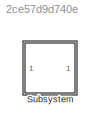
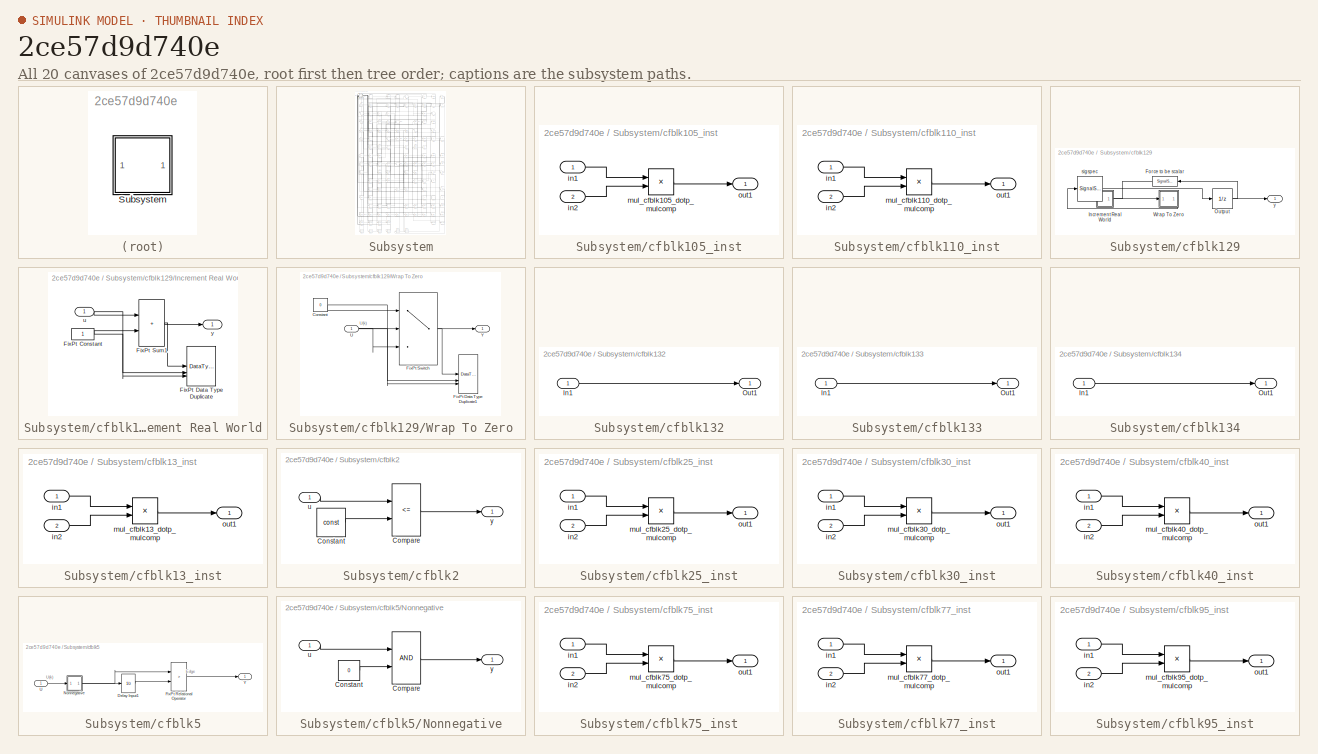
[diagram: thumbnail index - all 20 canvases of the model, root first then tree order]
MODEL slx_2ce57d9d740e
KIND model
CONFIG AbsTol = auto
CONFIG EnableMultiTasking = off
CONFIG FixedStep = auto
CONFIG MaxStep = auto
CONFIG MinStep = auto
CONFIG RelTol = 1e-3
CONFIG SampleTimeConstraint = Unconstrained
CONFIG SolverName = VariableStepAuto
CONFIG StartTime = 0.0
CONFIG StopTime = 10.0
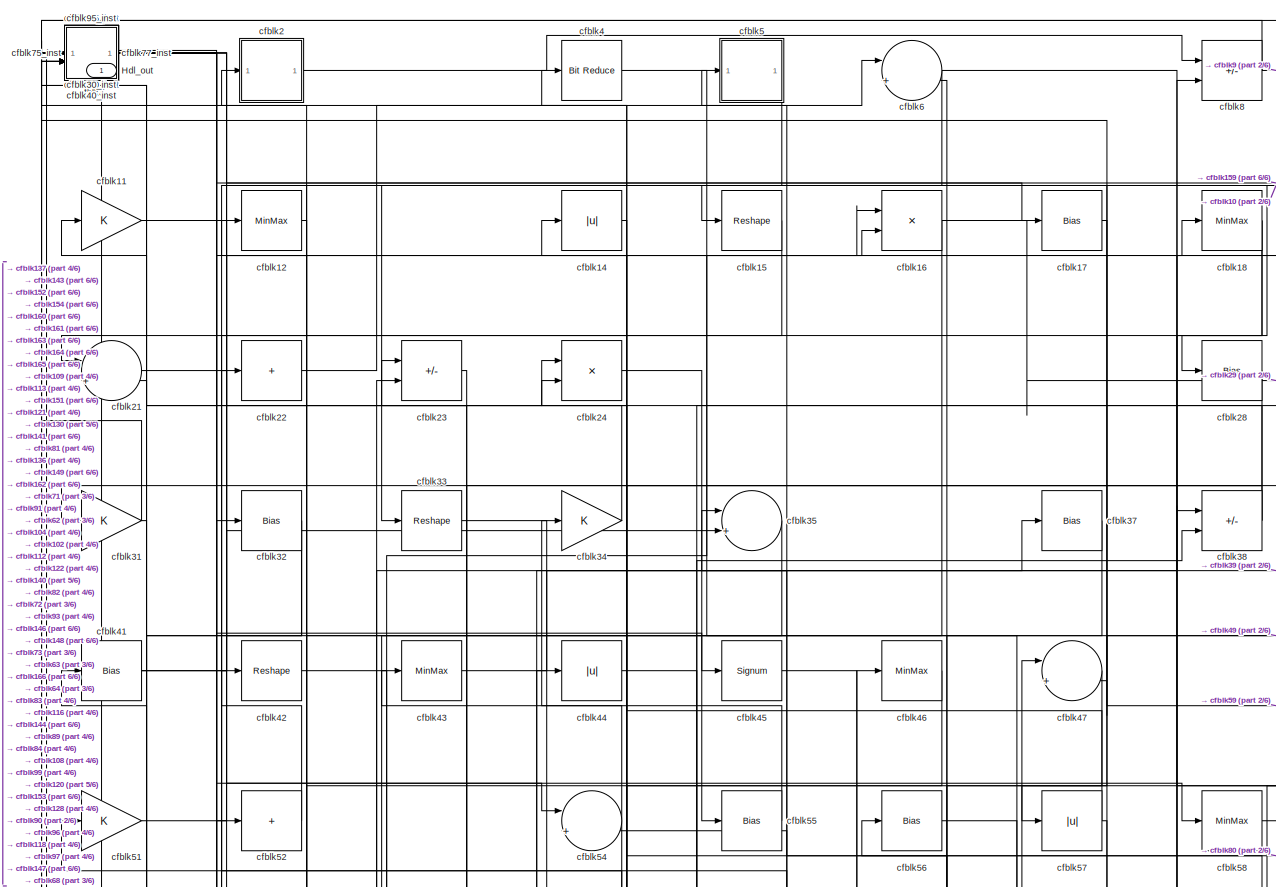
[diagram: Subsystem - part 1/6, full width, top band]
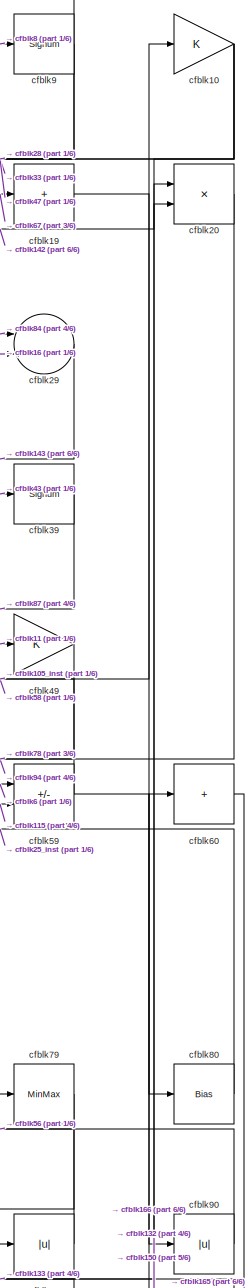
[diagram: Subsystem - part 2/6, top right region]
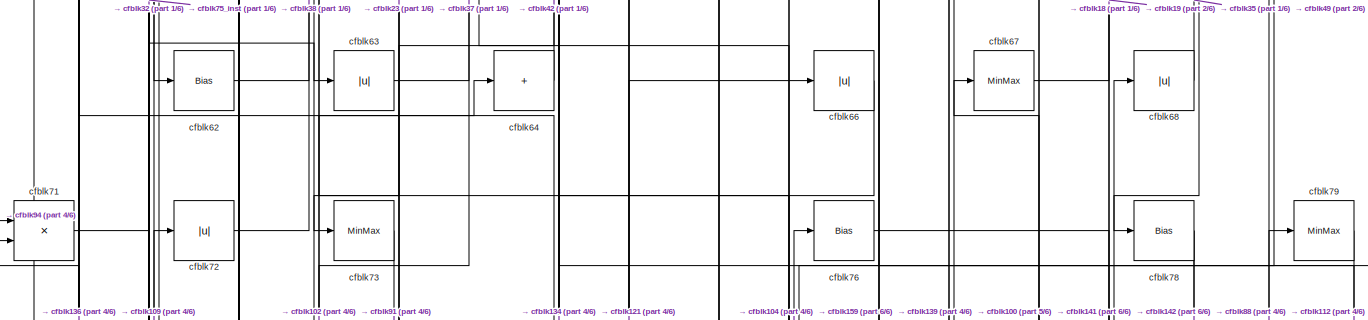
[diagram: Subsystem - part 3/6, full width, middle band]
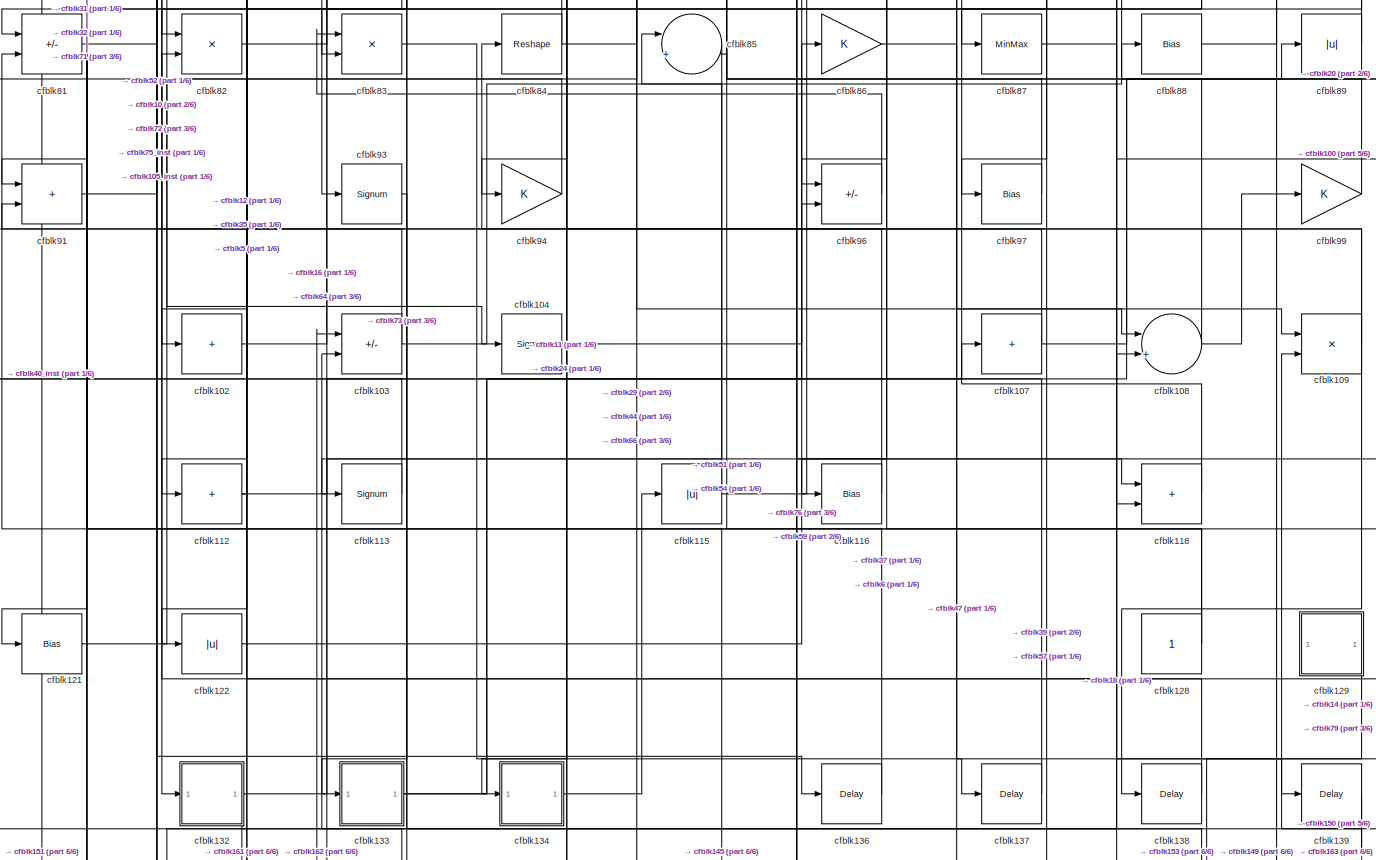
[diagram: Subsystem - part 4/6, full width, middle band]
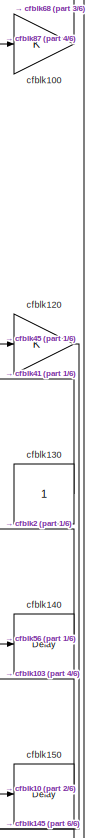
[diagram: Subsystem - part 5/6, bottom right region]
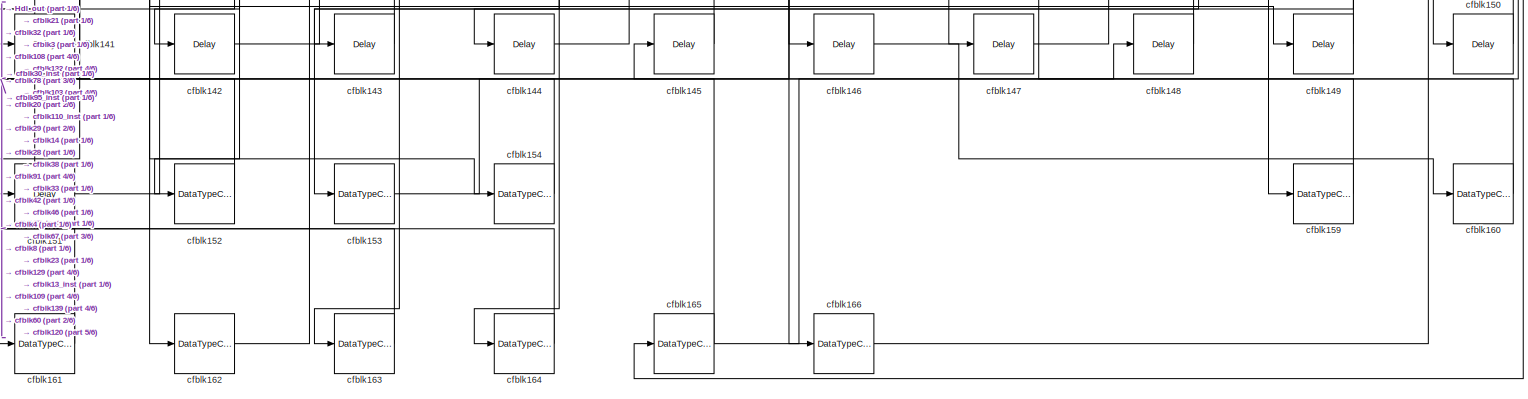
[diagram: Subsystem - part 6/6, full width, bottom band]
BLOCK [SubSystem] Subsystem
BLOCK [Outport] Subsystem/Hdl_out
  OutDataTypeStr = uint8
  SampleTime = 1
BLOCK [Gain] Subsystem/cfblk10
  OutDataTypeStr = uint8
BLOCK [Gain] Subsystem/cfblk100
  OutDataTypeStr = uint8
BLOCK [Sum] Subsystem/cfblk102
  IconShape = rectangular
  Inputs = +
  OutDataTypeStr = uint8
BLOCK [Sum] Subsystem/cfblk103
  IconShape = rectangular
  Inputs = +-
  OutDataTypeStr = uint8
BLOCK [Signum] Subsystem/cfblk104
BLOCK [SubSystem] Subsystem/cfblk105_inst
BLOCK [Inport] Subsystem/cfblk105_inst/in1
  OutDataTypeStr = uint8
  SampleTime = 1
BLOCK [Inport] Subsystem/cfblk105_inst/in2
  OutDataTypeStr = uint8
  Port = 2
  SampleTime = 1
BLOCK [Product] Subsystem/cfblk105_inst/mul_cfblk105_dotp_mulcomp
  Inputs = **
  OutDataTypeStr = uint8
  SampleTime = 1
BLOCK [Outport] Subsystem/cfblk105_inst/out1
  OutDataTypeStr = uint8
  SampleTime = 1
BLOCK [Sum] Subsystem/cfblk107
  IconShape = rectangular
  Inputs = +
  OutDataTypeStr = uint8
BLOCK [Sum] Subsystem/cfblk108
  Inputs = |++
  OutDataTypeStr = uint8
BLOCK [Product] Subsystem/cfblk109
  Inputs = */
  OutDataTypeStr = uint8
  RndMeth = Zero
  SaturateOnIntegerOverflow = on
BLOCK [Gain] Subsystem/cfblk11
  OutDataTypeStr = uint8
BLOCK [SubSystem] Subsystem/cfblk110_inst
BLOCK [Inport] Subsystem/cfblk110_inst/in1
  OutDataTypeStr = uint8
  SampleTime = 1
BLOCK [Inport] Subsystem/cfblk110_inst/in2
  OutDataTypeStr = uint8
  Port = 2
  SampleTime = 1
BLOCK [Product] Subsystem/cfblk110_inst/mul_cfblk110_dotp_mulcomp
  Inputs = **
  OutDataTypeStr = uint8
  SampleTime = 1
BLOCK [Outport] Subsystem/cfblk110_inst/out1
  OutDataTypeStr = uint8
  SampleTime = 1
BLOCK [Sum] Subsystem/cfblk112
  IconShape = rectangular
  Inputs = +
  OutDataTypeStr = uint8
BLOCK [Signum] Subsystem/cfblk113
BLOCK [Abs] Subsystem/cfblk115
  OutDataTypeStr = uint8
  SaturateOnIntegerOverflow = off
BLOCK [Bias] Subsystem/cfblk116
  Bias = 0.0
  SaturateOnIntegerOverflow = off
BLOCK [Sum] Subsystem/cfblk118
  IconShape = rectangular
  OutDataTypeStr = uint8
BLOCK [MinMax] Subsystem/cfblk12
  OutDataTypeStr = uint8
BLOCK [Gain] Subsystem/cfblk120
  OutDataTypeStr = uint8
BLOCK [Bias] Subsystem/cfblk121
  Bias = 0.0
  SaturateOnIntegerOverflow = off
BLOCK [Abs] Subsystem/cfblk122
  OutDataTypeStr = uint8
  SaturateOnIntegerOverflow = off
BLOCK [Constant] Subsystem/cfblk128
  OutDataTypeStr = uint8
  SampleTime = -1
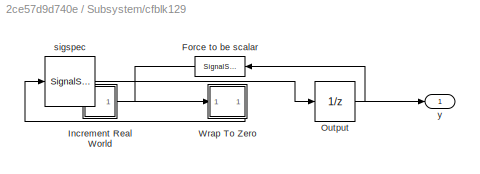
BLOCK [SubSystem] Subsystem/cfblk129
BLOCK [SignalSpecification] Subsystem/cfblk129/Force to be scalar
  Dimensions = 1
  DisableCoverage = on
BLOCK [SubSystem] Subsystem/cfblk129/Increment Real World
BLOCK [Constant] Subsystem/cfblk129/Increment Real World/FixPt Constant
  DisableCoverage = on
  OutDataTypeStr = Inherit: Inherit via back propagation
  SampleTime = -1
BLOCK [DataTypeDuplicate] Subsystem/cfblk129/Increment Real World/FixPt Data Type Duplicate
  DisableCoverage = on
  NumInputPorts = 3
BLOCK [Sum] Subsystem/cfblk129/Increment Real World/FixPt Sum1
  IconShape = rectangular
  InputSameDT = on
  LockScale = on
  OutDataTypeStr = Inherit: Inherit via back propagation
BLOCK [Inport] Subsystem/cfblk129/Increment Real World/u
  OutDataTypeStr = uint8
  SampleTime = 1
BLOCK [Outport] Subsystem/cfblk129/Increment Real World/y
  SampleTime = 1
BLOCK [UnitDelay] Subsystem/cfblk129/Output
  HasFrameUpgradeWarning = on
  InitialCondition = 0.0
  SampleTime = tsamp
BLOCK [SubSystem] Subsystem/cfblk129/Wrap To Zero
BLOCK [Constant] Subsystem/cfblk129/Wrap To Zero/Constant
  DisableCoverage = on
  OutDataTypeStr = Inherit: Inherit via back propagation
  SampleTime = -1
  Value = 0
BLOCK [DataTypeDuplicate] Subsystem/cfblk129/Wrap To Zero/FixPt Data Type Duplicate1
  DisableCoverage = on
  NumInputPorts = 3
BLOCK [Switch] Subsystem/cfblk129/Wrap To Zero/FixPt Switch
  Criteria = u2 > Threshold
  InputSameDT = off
  OutDataTypeStr = Inherit: Inherit via back propagation
  SaturateOnIntegerOverflow = off
  Threshold = Threshold
  ZeroCross = off
BLOCK [Inport] Subsystem/cfblk129/Wrap To Zero/U
  OutDataTypeStr = uint8
  SampleTime = 1
BLOCK [Outport] Subsystem/cfblk129/Wrap To Zero/Y
  SampleTime = 1
BLOCK [SignalSpecification] Subsystem/cfblk129/sigspec
  Dimensions = 1
  OutDataTypeStr = uint8
BLOCK [Outport] Subsystem/cfblk129/y
  SampleTime = 1
BLOCK [Constant] Subsystem/cfblk130
  OutDataTypeStr = uint8
  SampleTime = -1
BLOCK [SubSystem] Subsystem/cfblk132
BLOCK [Inport] Subsystem/cfblk132/In1
  OutDataTypeStr = uint8
  PortDimensions = 1
  SampleTime = 1
BLOCK [Outport] Subsystem/cfblk132/Out1
  SampleTime = 1
BLOCK [SubSystem] Subsystem/cfblk133
BLOCK [Inport] Subsystem/cfblk133/In1
  OutDataTypeStr = uint8
  PortDimensions = 1
  SampleTime = 1
BLOCK [Outport] Subsystem/cfblk133/Out1
  SampleTime = 1
BLOCK [SubSystem] Subsystem/cfblk134
BLOCK [Inport] Subsystem/cfblk134/In1
  OutDataTypeStr = uint8
  PortDimensions = 1
  SampleTime = 1
BLOCK [Outport] Subsystem/cfblk134/Out1
  SampleTime = 1
BLOCK [Delay] Subsystem/cfblk136
  InputPortMap = u0
  SampleTime = 1
BLOCK [Delay] Subsystem/cfblk137
  InputPortMap = u0
  SampleTime = 1
BLOCK [Delay] Subsystem/cfblk138
  InputPortMap = u0
  SampleTime = 1
BLOCK [Delay] Subsystem/cfblk139
  InputPortMap = u0
  SampleTime = 1
BLOCK [SubSystem] Subsystem/cfblk13_inst
BLOCK [Inport] Subsystem/cfblk13_inst/in1
  OutDataTypeStr = uint8
  SampleTime = 1
BLOCK [Inport] Subsystem/cfblk13_inst/in2
  OutDataTypeStr = uint8
  Port = 2
  SampleTime = 1
BLOCK [Product] Subsystem/cfblk13_inst/mul_cfblk13_dotp_mulcomp
  Inputs = **
  OutDataTypeStr = uint8
  SampleTime = 1
BLOCK [Outport] Subsystem/cfblk13_inst/out1
  OutDataTypeStr = uint8
  SampleTime = 1
BLOCK [Abs] Subsystem/cfblk14
  OutDataTypeStr = uint8
  SaturateOnIntegerOverflow = off
BLOCK [Delay] Subsystem/cfblk140
  InputPortMap = u0
  SampleTime = 1
BLOCK [Delay] Subsystem/cfblk141
  InputPortMap = u0
  SampleTime = 1
BLOCK [Delay] Subsystem/cfblk142
  InputPortMap = u0
  SampleTime = 1
BLOCK [Delay] Subsystem/cfblk143
  InputPortMap = u0
  SampleTime = 1
BLOCK [Delay] Subsystem/cfblk144
  InputPortMap = u0
  SampleTime = 1
BLOCK [Delay] Subsystem/cfblk145
  InputPortMap = u0
  SampleTime = 1
BLOCK [Delay] Subsystem/cfblk146
  InputPortMap = u0
  SampleTime = 1
BLOCK [Delay] Subsystem/cfblk147
  InputPortMap = u0
  SampleTime = 1
BLOCK [Delay] Subsystem/cfblk148
  InputPortMap = u0
  SampleTime = 1
BLOCK [Delay] Subsystem/cfblk149
  InputPortMap = u0
  SampleTime = 1
BLOCK [Reshape] Subsystem/cfblk15
BLOCK [Delay] Subsystem/cfblk150
  InputPortMap = u0
  SampleTime = 1
BLOCK [Delay] Subsystem/cfblk151
  InputPortMap = u0
  SampleTime = 1
BLOCK [DataTypeConversion] Subsystem/cfblk152
  OutDataTypeStr = uint8
  RndMeth = Floor
  SaturateOnIntegerOverflow = off
BLOCK [DataTypeConversion] Subsystem/cfblk153
  OutDataTypeStr = uint8
  RndMeth = Floor
  SaturateOnIntegerOverflow = off
BLOCK [DataTypeConversion] Subsystem/cfblk154
  OutDataTypeStr = uint8
  RndMeth = Floor
  SaturateOnIntegerOverflow = off
BLOCK [DataTypeConversion] Subsystem/cfblk159
  OutDataTypeStr = uint8
  RndMeth = Floor
  SaturateOnIntegerOverflow = off
BLOCK [Product] Subsystem/cfblk16
  Inputs = */
  OutDataTypeStr = uint8
  RndMeth = Zero
  SaturateOnIntegerOverflow = on
BLOCK [DataTypeConversion] Subsystem/cfblk160
  OutDataTypeStr = uint8
  RndMeth = Floor
  SaturateOnIntegerOverflow = off
BLOCK [DataTypeConversion] Subsystem/cfblk161
  OutDataTypeStr = uint8
  RndMeth = Floor
  SaturateOnIntegerOverflow = off
BLOCK [DataTypeConversion] Subsystem/cfblk162
  OutDataTypeStr = uint8
  RndMeth = Floor
  SaturateOnIntegerOverflow = off
BLOCK [DataTypeConversion] Subsystem/cfblk163
  OutDataTypeStr = uint8
  RndMeth = Floor
  SaturateOnIntegerOverflow = off
BLOCK [DataTypeConversion] Subsystem/cfblk164
  OutDataTypeStr = uint8
  RndMeth = Floor
  SaturateOnIntegerOverflow = off
BLOCK [DataTypeConversion] Subsystem/cfblk165
  OutDataTypeStr = uint8
  RndMeth = Floor
  SaturateOnIntegerOverflow = off
BLOCK [DataTypeConversion] Subsystem/cfblk166
  OutDataTypeStr = uint8
  RndMeth = Floor
  SaturateOnIntegerOverflow = off
BLOCK [Bias] Subsystem/cfblk17
  Bias = 0.0
  SaturateOnIntegerOverflow = off
BLOCK [MinMax] Subsystem/cfblk18
  OutDataTypeStr = uint8
BLOCK [Sum] Subsystem/cfblk19
  IconShape = rectangular
  Inputs = +
  OutDataTypeStr = uint8
BLOCK [SubSystem] Subsystem/cfblk2
BLOCK [RelationalOperator] Subsystem/cfblk2/Compare
  Operator = <=
  OutDataTypeStr = fixdt(0, 8)
BLOCK [Constant] Subsystem/cfblk2/Constant
  DisableCoverage = on
  OutDataTypeStr = Inherit: Inherit via back propagation
  SampleTime = -1
  Value = const
BLOCK [Inport] Subsystem/cfblk2/u
  OutDataTypeStr = uint8
  SampleTime = 1
BLOCK [Outport] Subsystem/cfblk2/y
  SampleTime = 1
BLOCK [Product] Subsystem/cfblk20
  Inputs = */
  OutDataTypeStr = uint8
  RndMeth = Zero
  SaturateOnIntegerOverflow = on
BLOCK [Sum] Subsystem/cfblk21
  Inputs = |++
  OutDataTypeStr = uint8
BLOCK [Sum] Subsystem/cfblk22
  IconShape = rectangular
  Inputs = +
  OutDataTypeStr = uint8
BLOCK [Sum] Subsystem/cfblk23
  IconShape = rectangular
  Inputs = +-
  OutDataTypeStr = uint8
BLOCK [Product] Subsystem/cfblk24
  Inputs = */
  OutDataTypeStr = uint8
  RndMeth = Zero
  SaturateOnIntegerOverflow = on
BLOCK [SubSystem] Subsystem/cfblk25_inst
BLOCK [Inport] Subsystem/cfblk25_inst/in1
  OutDataTypeStr = uint8
  SampleTime = 1
BLOCK [Inport] Subsystem/cfblk25_inst/in2
  OutDataTypeStr = uint8
  Port = 2
  SampleTime = 1
BLOCK [Product] Subsystem/cfblk25_inst/mul_cfblk25_dotp_mulcomp
  Inputs = **
  OutDataTypeStr = uint8
  SampleTime = 1
BLOCK [Outport] Subsystem/cfblk25_inst/out1
  OutDataTypeStr = uint8
  SampleTime = 1
BLOCK [Bias] Subsystem/cfblk28
  Bias = 0.0
  SaturateOnIntegerOverflow = off
BLOCK [Sum] Subsystem/cfblk29
  Inputs = |++
  OutDataTypeStr = uint8
BLOCK [Constant] Subsystem/cfblk3
  OutDataTypeStr = uint8
  SampleTime = 1
  Value = 0
BLOCK [SubSystem] Subsystem/cfblk30_inst
BLOCK [Inport] Subsystem/cfblk30_inst/in1
  OutDataTypeStr = uint8
  SampleTime = 1
BLOCK [Inport] Subsystem/cfblk30_inst/in2
  OutDataTypeStr = uint8
  Port = 2
  SampleTime = 1
BLOCK [Product] Subsystem/cfblk30_inst/mul_cfblk30_dotp_mulcomp
  Inputs = **
  OutDataTypeStr = uint8
  SampleTime = 1
BLOCK [Outport] Subsystem/cfblk30_inst/out1
  OutDataTypeStr = uint8
  SampleTime = 1
BLOCK [Gain] Subsystem/cfblk31
  OutDataTypeStr = uint8
BLOCK [Bias] Subsystem/cfblk32
  Bias = 0.0
  SaturateOnIntegerOverflow = off
BLOCK [Reshape] Subsystem/cfblk33
BLOCK [Gain] Subsystem/cfblk34
  OutDataTypeStr = uint8
BLOCK [Sum] Subsystem/cfblk35
  Inputs = |++
  OutDataTypeStr = uint8
BLOCK [Bias] Subsystem/cfblk37
  Bias = 0.0
  SaturateOnIntegerOverflow = off
BLOCK [Sum] Subsystem/cfblk38
  IconShape = rectangular
  Inputs = +-
  OutDataTypeStr = uint8
BLOCK [Signum] Subsystem/cfblk39
BLOCK [Reference] Subsystem/cfblk4  REF=hdlsllib/Logic and Bit
Operations/Bit Reduce
  SourceBlock = hdlsllib/Logic and Bit\nOperations/Bit Reduce
  SourceType = Bit Reduce
BLOCK [SubSystem] Subsystem/cfblk40_inst
BLOCK [Inport] Subsystem/cfblk40_inst/in1
  OutDataTypeStr = uint8
  SampleTime = 1
BLOCK [Inport] Subsystem/cfblk40_inst/in2
  OutDataTypeStr = uint8
  Port = 2
  SampleTime = 1
BLOCK [Product] Subsystem/cfblk40_inst/mul_cfblk40_dotp_mulcomp
  Inputs = **
  OutDataTypeStr = uint8
  SampleTime = 1
BLOCK [Outport] Subsystem/cfblk40_inst/out1
  OutDataTypeStr = uint8
  SampleTime = 1
BLOCK [Bias] Subsystem/cfblk41
  Bias = 0.0
  SaturateOnIntegerOverflow = off
BLOCK [Reshape] Subsystem/cfblk42
BLOCK [MinMax] Subsystem/cfblk43
  OutDataTypeStr = uint8
BLOCK [Abs] Subsystem/cfblk44
  OutDataTypeStr = uint8
  SaturateOnIntegerOverflow = off
BLOCK [Signum] Subsystem/cfblk45
BLOCK [MinMax] Subsystem/cfblk46
  OutDataTypeStr = uint8
BLOCK [Sum] Subsystem/cfblk47
  Inputs = |++
  OutDataTypeStr = uint8
BLOCK [Gain] Subsystem/cfblk49
  OutDataTypeStr = uint8
BLOCK [SubSystem] Subsystem/cfblk5
BLOCK [UnitDelay] Subsystem/cfblk5/Delay Input1
  Description = Store in Global RAM
  DisableCoverage = on
  HasFrameUpgradeWarning = on
  InitialCondition = vinit
  SampleTime = -1
BLOCK [RelationalOperator] Subsystem/cfblk5/FixPt Relational Operator
  InputSameDT = off
  Operator = >
  OutDataTypeStr = fixdt(0, 8)
  ZeroCross = off
BLOCK [SubSystem] Subsystem/cfblk5/Nonnegative
BLOCK [RelationalOperator] Subsystem/cfblk5/Nonnegative/Compare
  OutDataTypeStr = boolean
  ZeroCross = off
BLOCK [Constant] Subsystem/cfblk5/Nonnegative/Constant
  DisableCoverage = on
  OutDataTypeStr = Inherit: Inherit via back propagation
  PreserveConstantTs = on
  SampleTime = -1
  Value = 0
BLOCK [Inport] Subsystem/cfblk5/Nonnegative/u
  OutDataTypeStr = uint8
  SampleTime = 1
BLOCK [Outport] Subsystem/cfblk5/Nonnegative/y
  SampleTime = 1
BLOCK [Inport] Subsystem/cfblk5/U
  OutDataTypeStr = uint8
  SampleTime = 1
BLOCK [Outport] Subsystem/cfblk5/Y
  SampleTime = 1
BLOCK [Gain] Subsystem/cfblk51
  OutDataTypeStr = uint8
BLOCK [Sum] Subsystem/cfblk52
  IconShape = rectangular
  Inputs = +
  OutDataTypeStr = uint8
BLOCK [Sum] Subsystem/cfblk54
  Inputs = |++
  OutDataTypeStr = uint8
BLOCK [Bias] Subsystem/cfblk55
  Bias = 0.0
  SaturateOnIntegerOverflow = off
BLOCK [Bias] Subsystem/cfblk56
  Bias = 0.0
  SaturateOnIntegerOverflow = off
BLOCK [Abs] Subsystem/cfblk57
  OutDataTypeStr = uint8
  SaturateOnIntegerOverflow = off
BLOCK [MinMax] Subsystem/cfblk58
  OutDataTypeStr = uint8
BLOCK [Sum] Subsystem/cfblk59
  IconShape = rectangular
  Inputs = +-
  OutDataTypeStr = uint8
BLOCK [Sum] Subsystem/cfblk6
  Inputs = |++
  OutDataTypeStr = uint8
BLOCK [Sum] Subsystem/cfblk60
  IconShape = rectangular
  Inputs = +
  OutDataTypeStr = uint8
BLOCK [Bias] Subsystem/cfblk62
  Bias = 0.0
  SaturateOnIntegerOverflow = off
BLOCK [Abs] Subsystem/cfblk63
  OutDataTypeStr = uint8
  SaturateOnIntegerOverflow = off
BLOCK [Sum] Subsystem/cfblk64
  IconShape = rectangular
  Inputs = +
  OutDataTypeStr = uint8
BLOCK [Abs] Subsystem/cfblk66
  OutDataTypeStr = uint8
  SaturateOnIntegerOverflow = off
BLOCK [MinMax] Subsystem/cfblk67
  OutDataTypeStr = uint8
BLOCK [Abs] Subsystem/cfblk68
  OutDataTypeStr = uint8
  SaturateOnIntegerOverflow = off
BLOCK [Product] Subsystem/cfblk71
  Inputs = */
  OutDataTypeStr = uint8
  RndMeth = Zero
  SaturateOnIntegerOverflow = on
BLOCK [Abs] Subsystem/cfblk72
  OutDataTypeStr = uint8
  SaturateOnIntegerOverflow = off
BLOCK [MinMax] Subsystem/cfblk73
  OutDataTypeStr = uint8
BLOCK [SubSystem] Subsystem/cfblk75_inst
BLOCK [Inport] Subsystem/cfblk75_inst/in1
  OutDataTypeStr = uint8
  SampleTime = 1
BLOCK [Inport] Subsystem/cfblk75_inst/in2
  OutDataTypeStr = uint8
  Port = 2
  SampleTime = 1
BLOCK [Product] Subsystem/cfblk75_inst/mul_cfblk75_dotp_mulcomp
  Inputs = **
  OutDataTypeStr = uint8
  SampleTime = 1
BLOCK [Outport] Subsystem/cfblk75_inst/out1
  OutDataTypeStr = uint8
  SampleTime = 1
BLOCK [Bias] Subsystem/cfblk76
  Bias = 0.0
  SaturateOnIntegerOverflow = off
BLOCK [SubSystem] Subsystem/cfblk77_inst
BLOCK [Inport] Subsystem/cfblk77_inst/in1
  OutDataTypeStr = uint8
  SampleTime = 1
BLOCK [Inport] Subsystem/cfblk77_inst/in2
  OutDataTypeStr = uint8
  Port = 2
  SampleTime = 1
BLOCK [Product] Subsystem/cfblk77_inst/mul_cfblk77_dotp_mulcomp
  Inputs = **
  OutDataTypeStr = uint8
  SampleTime = 1
BLOCK [Outport] Subsystem/cfblk77_inst/out1
  OutDataTypeStr = uint8
  SampleTime = 1
BLOCK [Bias] Subsystem/cfblk78
  Bias = 0.0
  SaturateOnIntegerOverflow = off
BLOCK [MinMax] Subsystem/cfblk79
  OutDataTypeStr = uint8
BLOCK [Sum] Subsystem/cfblk8
  IconShape = rectangular
  Inputs = +-
  OutDataTypeStr = uint8
BLOCK [Bias] Subsystem/cfblk80
  Bias = 0.0
  SaturateOnIntegerOverflow = off
BLOCK [Sum] Subsystem/cfblk81
  IconShape = rectangular
  Inputs = +-
  OutDataTypeStr = uint8
BLOCK [Product] Subsystem/cfblk82
  Inputs = */
  OutDataTypeStr = uint8
  RndMeth = Zero
  SaturateOnIntegerOverflow = on
BLOCK [Product] Subsystem/cfblk83
  Inputs = */
  OutDataTypeStr = uint8
  RndMeth = Zero
  SaturateOnIntegerOverflow = on
BLOCK [Reshape] Subsystem/cfblk84
BLOCK [Sum] Subsystem/cfblk85
  Inputs = |++
  OutDataTypeStr = uint8
BLOCK [Gain] Subsystem/cfblk86
  OutDataTypeStr = uint8
BLOCK [MinMax] Subsystem/cfblk87
  OutDataTypeStr = uint8
BLOCK [Bias] Subsystem/cfblk88
  Bias = 0.0
  SaturateOnIntegerOverflow = off
BLOCK [Abs] Subsystem/cfblk89
  OutDataTypeStr = uint8
  SaturateOnIntegerOverflow = off
BLOCK [Signum] Subsystem/cfblk9
BLOCK [Abs] Subsystem/cfblk90
  OutDataTypeStr = uint8
  SaturateOnIntegerOverflow = off
BLOCK [Sum] Subsystem/cfblk91
  IconShape = rectangular
  OutDataTypeStr = uint8
BLOCK [Signum] Subsystem/cfblk93
BLOCK [Gain] Subsystem/cfblk94
  OutDataTypeStr = uint8
BLOCK [SubSystem] Subsystem/cfblk95_inst
BLOCK [Inport] Subsystem/cfblk95_inst/in1
  OutDataTypeStr = uint8
  SampleTime = 1
BLOCK [Inport] Subsystem/cfblk95_inst/in2
  OutDataTypeStr = uint8
  Port = 2
  SampleTime = 1
BLOCK [Product] Subsystem/cfblk95_inst/mul_cfblk95_dotp_mulcomp
  Inputs = **
  OutDataTypeStr = uint8
  SampleTime = 1
BLOCK [Outport] Subsystem/cfblk95_inst/out1
  OutDataTypeStr = uint8
  SampleTime = 1
BLOCK [Sum] Subsystem/cfblk96
  IconShape = rectangular
  Inputs = +-
  OutDataTypeStr = uint8
BLOCK [Bias] Subsystem/cfblk97
  Bias = 0.0
  SaturateOnIntegerOverflow = off
BLOCK [Gain] Subsystem/cfblk99
  OutDataTypeStr = uint8
ANNOTATION Subsystem/cfblk129/Wrap To Zero: U(k)
ANNOTATION Subsystem/cfblk5: Edge
ANNOTATION Subsystem/cfblk5: U(k)
LINE Subsystem/cfblk100:1 -> Subsystem/cfblk68:1
LINE Subsystem/cfblk102:1 -> Subsystem/cfblk64:1
NET Subsystem/cfblk103:1 -> Subsystem/cfblk81:2, Subsystem/cfblk88:1
LINE Subsystem/cfblk104:1 -> Subsystem/cfblk76:1
LINE Subsystem/cfblk105_inst/in1:1 -> Subsystem/cfblk105_inst/mul_cfblk105_dotp_mulcomp:1
LINE Subsystem/cfblk105_inst/in2:1 -> Subsystem/cfblk105_inst/mul_cfblk105_dotp_mulcomp:2
LINE Subsystem/cfblk105_inst/mul_cfblk105_dotp_mulcomp:1 -> Subsystem/cfblk105_inst/out1:1
LINE Subsystem/cfblk105_inst:1 -> Subsystem/cfblk104:1
NET Subsystem/cfblk107:1 -> Subsystem/cfblk84:1, Subsystem/cfblk89:1
NET Subsystem/cfblk108:1 -> Subsystem/cfblk54:2, Subsystem/cfblk99:1
NET Subsystem/cfblk109:1 -> Subsystem/cfblk138:1, Subsystem/cfblk72:1, Subsystem/cfblk75_inst:1
NET Subsystem/cfblk10:1 -> Subsystem/cfblk132:1, Subsystem/cfblk150:1, Subsystem/cfblk33:1
LINE Subsystem/cfblk110_inst/in1:1 -> Subsystem/cfblk110_inst/mul_cfblk110_dotp_mulcomp:1
LINE Subsystem/cfblk110_inst/in2:1 -> Subsystem/cfblk110_inst/mul_cfblk110_dotp_mulcomp:2
LINE Subsystem/cfblk110_inst/mul_cfblk110_dotp_mulcomp:1 -> Subsystem/cfblk110_inst/out1:1
LINE Subsystem/cfblk110_inst:1 -> Subsystem/cfblk58:1
NET Subsystem/cfblk112:1 -> Subsystem/cfblk118:1, Subsystem/cfblk12:1
LINE Subsystem/cfblk113:1 -> Subsystem/cfblk75_inst:2
NET Subsystem/cfblk115:1 -> Subsystem/cfblk59:2, Subsystem/cfblk85:1
LINE Subsystem/cfblk116:1 -> Subsystem/cfblk24:1
LINE Subsystem/cfblk118:1 -> Subsystem/cfblk47:1
LINE Subsystem/cfblk11:1 -> Subsystem/cfblk49:1
LINE Subsystem/cfblk120:1 -> Subsystem/cfblk145:1
LINE Subsystem/cfblk121:1 -> Subsystem/cfblk66:1
LINE Subsystem/cfblk122:1 -> Subsystem/cfblk86:1
NET Subsystem/cfblk128:1 -> Subsystem/cfblk6:2, Subsystem/cfblk85:2
LINE Subsystem/cfblk129:1 -> Subsystem/cfblk153:1
LINE Subsystem/cfblk12:1 -> Subsystem/cfblk82:1
LINE Subsystem/cfblk130:1 -> Subsystem/cfblk41:1
LINE Subsystem/cfblk132/In1:1 -> Subsystem/cfblk132/Out1:1
NET Subsystem/cfblk132:1 -> Subsystem/cfblk107:1, Subsystem/cfblk161:1
LINE Subsystem/cfblk133/In1:1 -> Subsystem/cfblk133/Out1:1
NET Subsystem/cfblk133:1 -> Subsystem/cfblk20:1, Subsystem/cfblk96:2
LINE Subsystem/cfblk134/In1:1 -> Subsystem/cfblk134/Out1:1
LINE Subsystem/cfblk134:1 -> Subsystem/cfblk115:1
LINE Subsystem/cfblk136:1 -> Subsystem/cfblk71:2
LINE Subsystem/cfblk137:1 -> Subsystem/cfblk40_inst:2
LINE Subsystem/cfblk138:1 -> Subsystem/cfblk82:2
LINE Subsystem/cfblk139:1 -> Subsystem/cfblk163:1
LINE Subsystem/cfblk13_inst/in1:1 -> Subsystem/cfblk13_inst/mul_cfblk13_dotp_mulcomp:1
LINE Subsystem/cfblk13_inst/in2:1 -> Subsystem/cfblk13_inst/mul_cfblk13_dotp_mulcomp:2
LINE Subsystem/cfblk13_inst/mul_cfblk13_dotp_mulcomp:1 -> Subsystem/cfblk13_inst/out1:1
LINE Subsystem/cfblk13_inst:1 -> Subsystem/cfblk159:1
LINE Subsystem/cfblk140:1 -> Subsystem/cfblk2:1
LINE Subsystem/cfblk141:1 -> Subsystem/cfblk21:2
LINE Subsystem/cfblk142:1 -> Subsystem/cfblk20:2
LINE Subsystem/cfblk143:1 -> Subsystem/cfblk110_inst:1
LINE Subsystem/cfblk144:1 -> Subsystem/cfblk38:2
LINE Subsystem/cfblk145:1 -> Subsystem/cfblk91:2
LINE Subsystem/cfblk146:1 -> Subsystem/cfblk160:1
LINE Subsystem/cfblk147:1 -> Subsystem/cfblk8:2
LINE Subsystem/cfblk148:1 -> Subsystem/cfblk23:1
LINE Subsystem/cfblk149:1 -> Subsystem/cfblk109:2
LINE Subsystem/cfblk14:1 -> Subsystem/cfblk144:1
LINE Subsystem/cfblk150:1 -> Subsystem/cfblk103:2
NET Subsystem/cfblk151:1 -> Subsystem/Hdl_out:1, Subsystem/cfblk108:2
LINE Subsystem/cfblk152:1 -> Subsystem/cfblk30_inst:2
LINE Subsystem/cfblk153:1 -> Subsystem/cfblk46:1
LINE Subsystem/cfblk154:1 -> Subsystem/cfblk30_inst:1
LINE Subsystem/cfblk159:1 -> Subsystem/cfblk67:1
LINE Subsystem/cfblk15:1 -> Subsystem/cfblk21:1
LINE Subsystem/cfblk160:1 -> Subsystem/cfblk13_inst:1
LINE Subsystem/cfblk161:1 -> Subsystem/cfblk13_inst:2
LINE Subsystem/cfblk162:1 -> Subsystem/cfblk103:1
LINE Subsystem/cfblk163:1 -> Subsystem/cfblk77_inst:1
LINE Subsystem/cfblk164:1 -> Subsystem/cfblk77_inst:2
NET Subsystem/cfblk165:1 -> Subsystem/cfblk148:1, Subsystem/cfblk95_inst:1
LINE Subsystem/cfblk166:1 -> Subsystem/cfblk60:1
NET Subsystem/cfblk16:1 -> Subsystem/cfblk29:2, Subsystem/cfblk93:1
LINE Subsystem/cfblk17:1 -> Subsystem/cfblk57:1
NET Subsystem/cfblk18:1 -> Subsystem/cfblk118:2, Subsystem/cfblk62:1
LINE Subsystem/cfblk19:1 -> Subsystem/cfblk80:1
LINE Subsystem/cfblk20:1 -> Subsystem/cfblk94:1
LINE Subsystem/cfblk21:1 -> Subsystem/cfblk24:2
LINE Subsystem/cfblk22:1 -> Subsystem/cfblk6:1
LINE Subsystem/cfblk23:1 -> Subsystem/cfblk73:1
LINE Subsystem/cfblk24:1 -> Subsystem/cfblk55:1
LINE Subsystem/cfblk25_inst/in1:1 -> Subsystem/cfblk25_inst/mul_cfblk25_dotp_mulcomp:1
LINE Subsystem/cfblk25_inst/in2:1 -> Subsystem/cfblk25_inst/mul_cfblk25_dotp_mulcomp:2
LINE Subsystem/cfblk25_inst/mul_cfblk25_dotp_mulcomp:1 -> Subsystem/cfblk25_inst/out1:1
LINE Subsystem/cfblk25_inst:1 -> Subsystem/cfblk17:1
LINE Subsystem/cfblk28:1 -> Subsystem/cfblk164:1
LINE Subsystem/cfblk29:1 -> Subsystem/cfblk143:1
LINE Subsystem/cfblk2:1 -> Subsystem/cfblk8:1
LINE Subsystem/cfblk30_inst/in1:1 -> Subsystem/cfblk30_inst/mul_cfblk30_dotp_mulcomp:1
LINE Subsystem/cfblk30_inst/in2:1 -> Subsystem/cfblk30_inst/mul_cfblk30_dotp_mulcomp:2
LINE Subsystem/cfblk30_inst/mul_cfblk30_dotp_mulcomp:1 -> Subsystem/cfblk30_inst/out1:1
LINE Subsystem/cfblk30_inst:1 -> Subsystem/cfblk45:1
NET Subsystem/cfblk31:1 -> Subsystem/cfblk105_inst:1, Subsystem/cfblk121:1
NET Subsystem/cfblk32:1 -> Subsystem/cfblk151:1, Subsystem/cfblk81:1
LINE Subsystem/cfblk33:1 -> Subsystem/cfblk166:1
LINE Subsystem/cfblk34:1 -> Subsystem/cfblk40_inst:1
LINE Subsystem/cfblk35:1 -> Subsystem/cfblk122:1
LINE Subsystem/cfblk37:1 -> Subsystem/cfblk96:1
NET Subsystem/cfblk38:1 -> Subsystem/cfblk110_inst:2, Subsystem/cfblk31:1
LINE Subsystem/cfblk39:1 -> Subsystem/cfblk87:1
LINE Subsystem/cfblk3:1 -> Subsystem/cfblk154:1
LINE Subsystem/cfblk40_inst/in1:1 -> Subsystem/cfblk40_inst/mul_cfblk40_dotp_mulcomp:1
LINE Subsystem/cfblk40_inst/in2:1 -> Subsystem/cfblk40_inst/mul_cfblk40_dotp_mulcomp:2
LINE Subsystem/cfblk40_inst/mul_cfblk40_dotp_mulcomp:1 -> Subsystem/cfblk40_inst/out1:1
NET Subsystem/cfblk40_inst:1 -> Subsystem/cfblk136:1, Subsystem/cfblk54:1
NET Subsystem/cfblk41:1 -> Subsystem/cfblk16:2, Subsystem/cfblk35:2
LINE Subsystem/cfblk42:1 -> Subsystem/cfblk146:1
LINE Subsystem/cfblk43:1 -> Subsystem/cfblk39:1
LINE Subsystem/cfblk44:1 -> Subsystem/cfblk108:1
LINE Subsystem/cfblk45:1 -> Subsystem/cfblk120:1
LINE Subsystem/cfblk46:1 -> Subsystem/cfblk152:1
LINE Subsystem/cfblk47:1 -> Subsystem/cfblk116:1
LINE Subsystem/cfblk49:1 -> Subsystem/cfblk78:1
LINE Subsystem/cfblk4:1 -> Subsystem/cfblk147:1
LINE Subsystem/cfblk51:1 -> Subsystem/cfblk16:1
LINE Subsystem/cfblk52:1 -> Subsystem/cfblk22:1
NET Subsystem/cfblk54:1 -> Subsystem/cfblk43:1, Subsystem/cfblk83:2
LINE Subsystem/cfblk55:1 -> Subsystem/cfblk34:1
LINE Subsystem/cfblk56:1 -> Subsystem/cfblk140:1
NET Subsystem/cfblk57:1 -> Subsystem/cfblk4:1, Subsystem/cfblk97:1
LINE Subsystem/cfblk58:1 -> Subsystem/cfblk10:1
NET Subsystem/cfblk59:1 -> Subsystem/cfblk105_inst:2, Subsystem/cfblk90:1
LINE Subsystem/cfblk5:1 -> Subsystem/cfblk102:1
LINE Subsystem/cfblk60:1 -> Subsystem/cfblk165:1
LINE Subsystem/cfblk62:1 -> Subsystem/cfblk23:2
LINE Subsystem/cfblk63:1 -> Subsystem/cfblk37:1
LINE Subsystem/cfblk64:1 -> Subsystem/cfblk42:1
LINE Subsystem/cfblk66:1 -> Subsystem/cfblk134:1
LINE Subsystem/cfblk67:1 -> Subsystem/cfblk19:1
LINE Subsystem/cfblk68:1 -> Subsystem/cfblk35:1
NET Subsystem/cfblk6:1 -> Subsystem/cfblk15:1, Subsystem/cfblk59:1
LINE Subsystem/cfblk71:1 -> Subsystem/cfblk32:1
LINE Subsystem/cfblk72:1 -> Subsystem/cfblk38:1
LINE Subsystem/cfblk73:1 -> Subsystem/cfblk91:1
LINE Subsystem/cfblk75_inst/in1:1 -> Subsystem/cfblk75_inst/mul_cfblk75_dotp_mulcomp:1
LINE Subsystem/cfblk75_inst/in2:1 -> Subsystem/cfblk75_inst/mul_cfblk75_dotp_mulcomp:2
LINE Subsystem/cfblk75_inst/mul_cfblk75_dotp_mulcomp:1 -> Subsystem/cfblk75_inst/out1:1
LINE Subsystem/cfblk75_inst:1 -> Subsystem/cfblk63:1
LINE Subsystem/cfblk76:1 -> Subsystem/cfblk139:1
LINE Subsystem/cfblk77_inst/in1:1 -> Subsystem/cfblk77_inst/mul_cfblk77_dotp_mulcomp:1
LINE Subsystem/cfblk77_inst/in2:1 -> Subsystem/cfblk77_inst/mul_cfblk77_dotp_mulcomp:2
LINE Subsystem/cfblk77_inst/mul_cfblk77_dotp_mulcomp:1 -> Subsystem/cfblk77_inst/out1:1
LINE Subsystem/cfblk77_inst:1 -> Subsystem/cfblk162:1
NET Subsystem/cfblk78:1 -> Subsystem/cfblk141:1, Subsystem/cfblk142:1
LINE Subsystem/cfblk79:1 -> Subsystem/cfblk112:1
LINE Subsystem/cfblk80:1 -> Subsystem/cfblk25_inst:1
LINE Subsystem/cfblk81:1 -> Subsystem/cfblk18:1
LINE Subsystem/cfblk82:1 -> Subsystem/cfblk44:1
LINE Subsystem/cfblk83:1 -> Subsystem/cfblk137:1
NET Subsystem/cfblk84:1 -> Subsystem/cfblk11:1, Subsystem/cfblk29:1
LINE Subsystem/cfblk85:1 -> Subsystem/cfblk113:1
LINE Subsystem/cfblk86:1 -> Subsystem/cfblk109:1
LINE Subsystem/cfblk87:1 -> Subsystem/cfblk100:1
LINE Subsystem/cfblk88:1 -> Subsystem/cfblk79:1
LINE Subsystem/cfblk89:1 -> Subsystem/cfblk14:1
NET Subsystem/cfblk8:1 -> Subsystem/cfblk95_inst:2, Subsystem/cfblk9:1
LINE Subsystem/cfblk90:1 -> Subsystem/cfblk56:1
LINE Subsystem/cfblk91:1 -> Subsystem/cfblk52:1
LINE Subsystem/cfblk93:1 -> Subsystem/cfblk133:1
LINE Subsystem/cfblk94:1 -> Subsystem/cfblk71:1
LINE Subsystem/cfblk95_inst/in1:1 -> Subsystem/cfblk95_inst/mul_cfblk95_dotp_mulcomp:1
LINE Subsystem/cfblk95_inst/in2:1 -> Subsystem/cfblk95_inst/mul_cfblk95_dotp_mulcomp:2
LINE Subsystem/cfblk95_inst/mul_cfblk95_dotp_mulcomp:1 -> Subsystem/cfblk95_inst/out1:1
LINE Subsystem/cfblk95_inst:1 -> Subsystem/cfblk149:1
LINE Subsystem/cfblk96:1 -> Subsystem/cfblk83:1
LINE Subsystem/cfblk97:1 -> Subsystem/cfblk5:1
LINE Subsystem/cfblk99:1 -> Subsystem/cfblk51:1
NET Subsystem/cfblk9:1 -> Subsystem/cfblk25_inst:2, Subsystem/cfblk28:1, Subsystem/cfblk47:2
note: NET lines group one-source signal fan-out (src -> all destinations, sorted); 1:1 wires keep LINE
